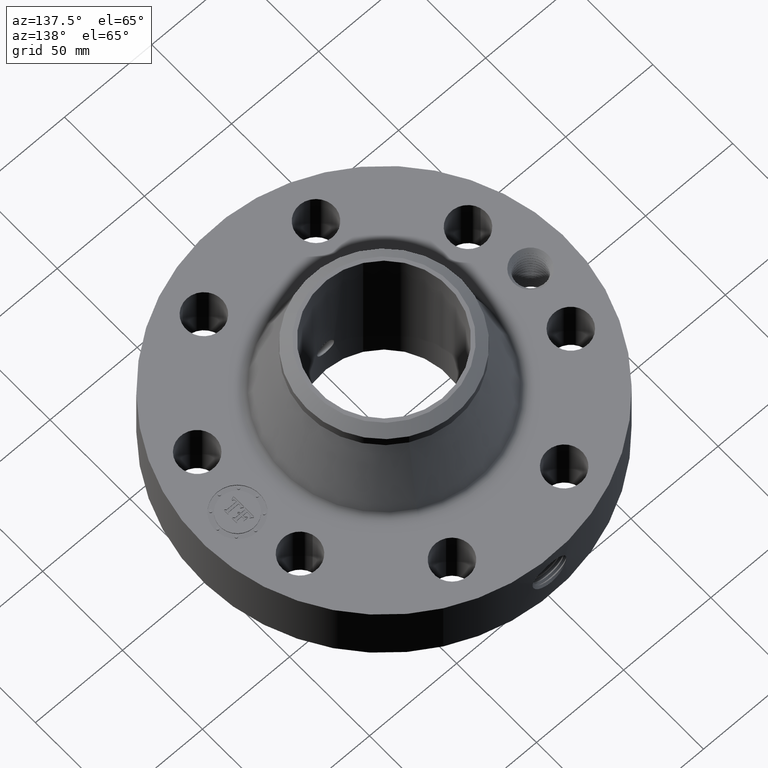
[diagram: clean part render]
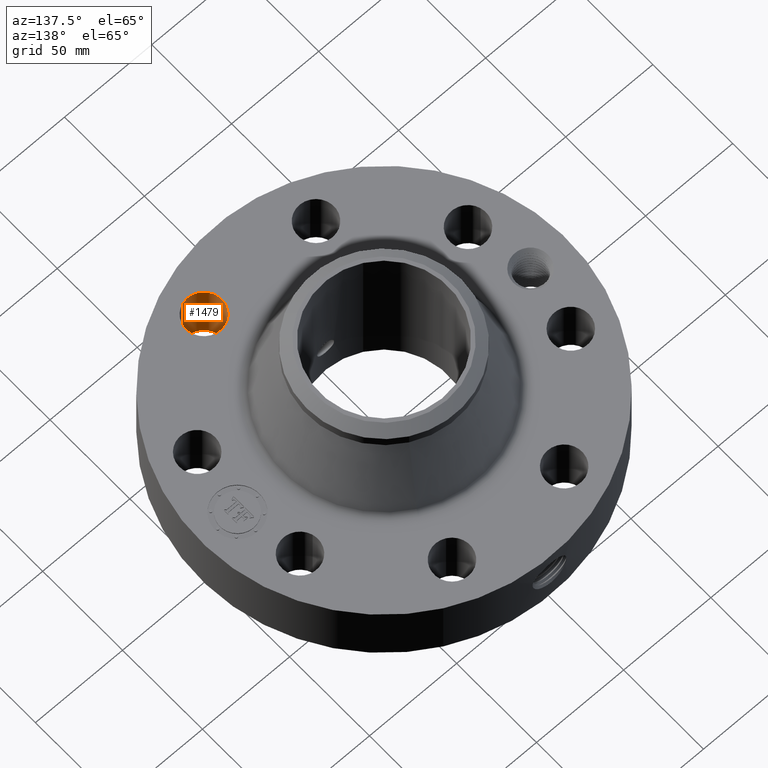
[diagram: same view with one face highlighted and labeled with its STEP entity id]
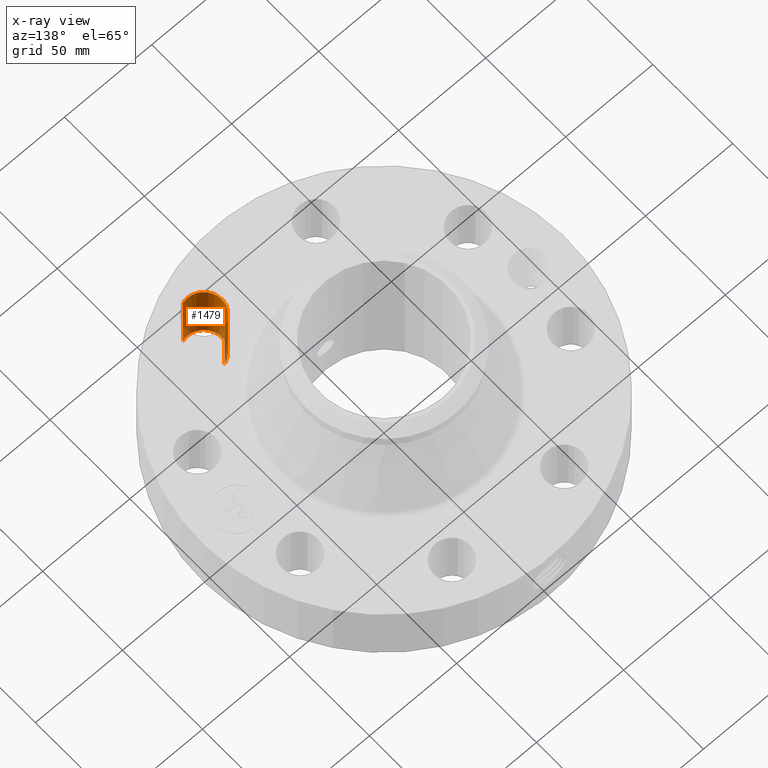
[diagram: x-ray of the same camera — body ghosted, the highlighted face saturated]
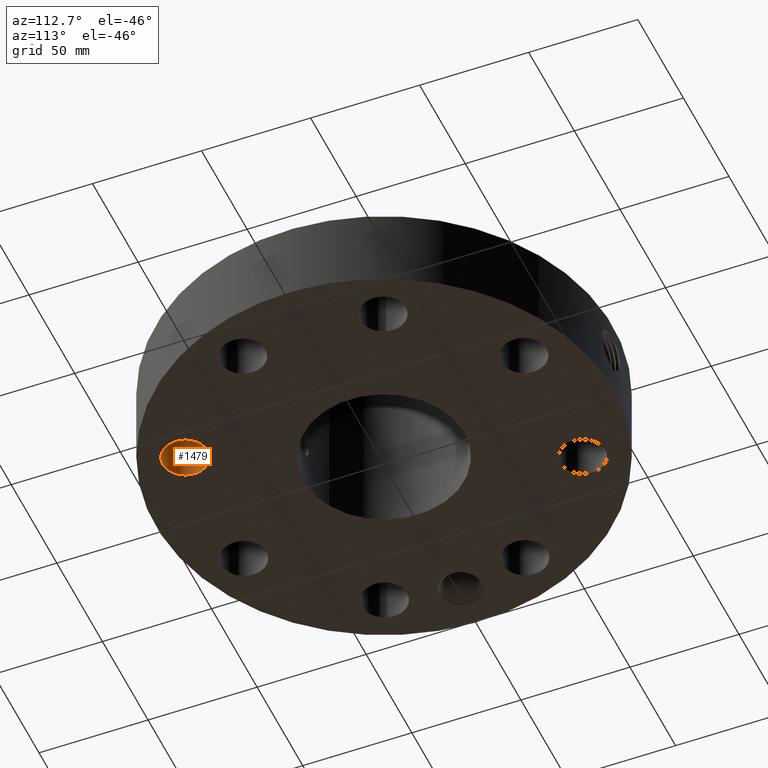
[diagram: same view with one face highlighted and labeled with its STEP entity id]
A machine part, auxiliary view. The second image highlights one B-rep face of the part: STEP entity #1479.
The next image is the same camera in x-ray: the body ghosted, the highlighted face saturated — about 8% of this face is hidden behind the body in this view.
A second angle (auxiliary view) of the same face is appended — the face is thin or edge-on in the first view.
In plain terms, the highlighted cylindrical surface (edge-blend (fillet) strip) has radius 10.287 mm, axis along (0, -0, -1).
Its self-contained STEP definition (entity closure, byte-faithful):
#269=AXIS2_PLACEMENT_3D('Circle Axis2P3D',#267,#268,$) ;
#577=AXIS2_PLACEMENT_3D('Circle Axis2P3D',#575,#576,$) ;
#1454=AXIS2_PLACEMENT_3D('Cylinder Axis2P3D',#1451,#1452,#1453) ;
#262=CARTESIAN_POINT('Vertex',(1.15265865102,-2.66942365248,0.0600000000002)) ;
#264=CARTESIAN_POINT('Vertex',(1.38070567125,-3.44665885277,0.0600000000002)) ;
#267=CARTESIAN_POINT('Axis2P3D Location',(1.26668216113,-3.05804125262,0.0600000000002)) ;
#575=CARTESIAN_POINT('Axis2P3D Location',(1.26668216113,-3.05804125262,1.56000000001)) ;
#579=CARTESIAN_POINT('Vertex',(1.38070567125,-3.44665885277,1.56000000001)) ;
#581=CARTESIAN_POINT('Vertex',(1.15265865102,-2.66942365248,1.56000000001)) ;
#1451=CARTESIAN_POINT('Axis2P3D Location',(1.26668216113,-3.05804125262,1.55606299213)) ;
#1456=CARTESIAN_POINT('Line Origine',(1.15265865102,-2.66942365248,0.810000000003)) ;
#1461=CARTESIAN_POINT('Line Origine',(1.38070567125,-3.44665885277,0.810000000003)) ;
#268=DIRECTION('Axis2P3D Direction',(0.,0.,-0.0393700787402)) ;
#576=DIRECTION('Axis2P3D Direction',(0.,0.,-0.0393700787402)) ;
#1452=DIRECTION('Axis2P3D Direction',(0.,-0.,-0.0393700787402)) ;
#1453=DIRECTION('Axis2P3D XDirection',(0.0110842335096,-0.0377775444876,0.)) ;
#1457=DIRECTION('Vector Direction',(0.,0.,-0.0393700787402)) ;
#1462=DIRECTION('Vector Direction',(0.,0.,-0.0393700787402)) ;
#1458=VECTOR('Line Direction',#1457,0.0393700787402) ;
#1463=VECTOR('Line Direction',#1462,0.0393700787402) ;
#1474=ORIENTED_EDGE('',*,*,#1465,.F.) ;
#1475=ORIENTED_EDGE('',*,*,#271,.T.) ;
#1476=ORIENTED_EDGE('',*,*,#1460,.T.) ;
#1477=ORIENTED_EDGE('',*,*,#583,.F.) ;
#1479=ADVANCED_FACE('PartBody',(#1478),#1455,.F.) ;
#270=CIRCLE('generated circle',#269,0.405000000002) ;
#578=CIRCLE('generated circle',#577,0.405000000002) ;
#1455=CYLINDRICAL_SURFACE('generated cylinder',#1454,0.405000000002) ;
#271=EDGE_CURVE('',#265,#263,#270,.T.) ;
#583=EDGE_CURVE('',#580,#582,#578,.T.) ;
#1460=EDGE_CURVE('',#263,#582,#1459,.F.) ;
#1465=EDGE_CURVE('',#265,#580,#1464,.F.) ;
#1473=EDGE_LOOP('',(#1474,#1475,#1476,#1477)) ;
#1478=FACE_OUTER_BOUND('',#1473,.T.) ;
#1459=LINE('Line',#1456,#1458) ;
#1464=LINE('Line',#1461,#1463) ;
#263=VERTEX_POINT('',#262) ;
#265=VERTEX_POINT('',#264) ;
#580=VERTEX_POINT('',#579) ;
#582=VERTEX_POINT('',#581) ;